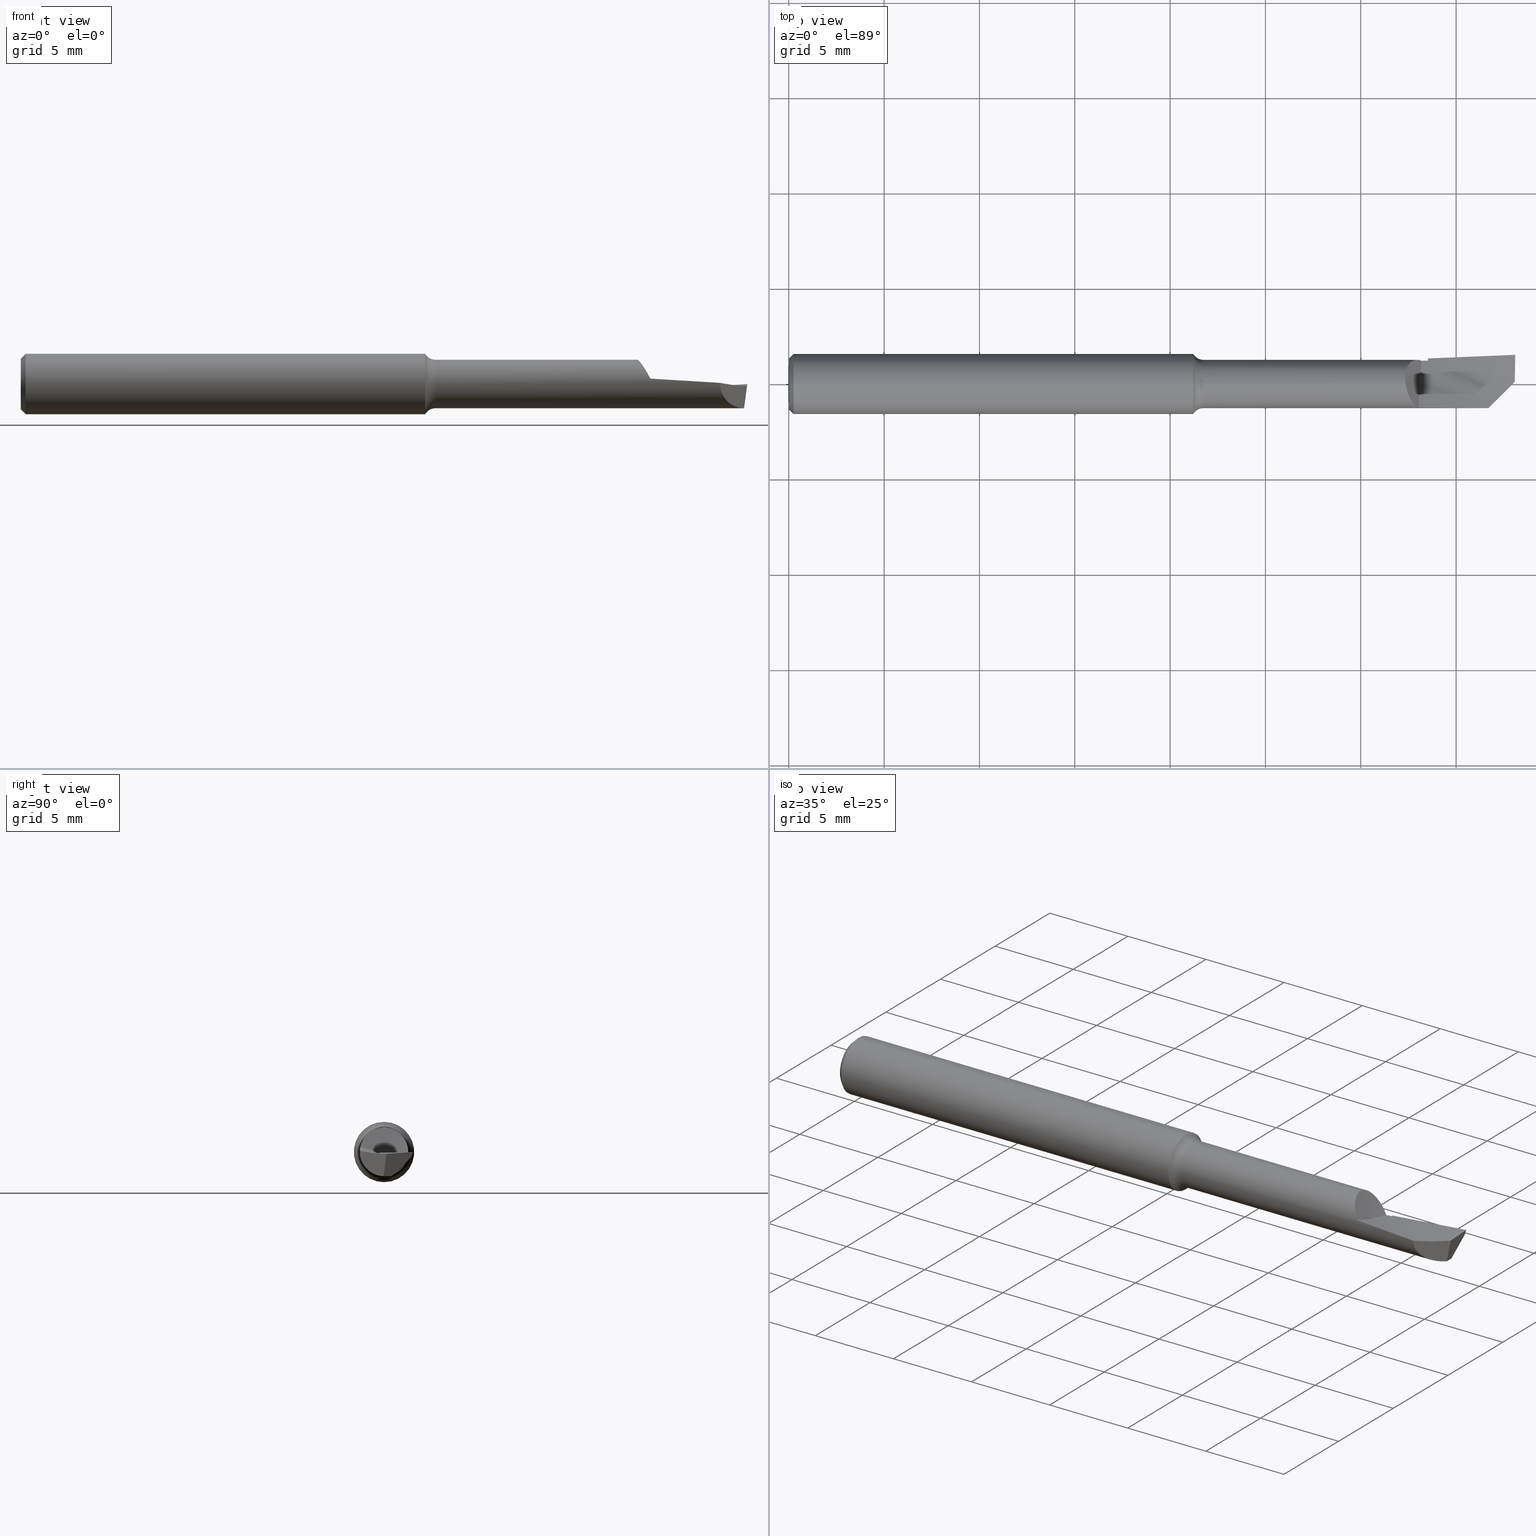
[diagram: canonical four-view strip — front | top / right | iso, engineering-drawing reading convention]
A machine part, canonical four-view strip (front | top / right | iso — engineering-drawing reading convention). The complete STEP part file that produces these views, byte-faithful:
ISO-10303-21;
HEADER;
FILE_DESCRIPTION (( 'STEP AP203' ),
    '1' );
FILE_NAME ('216342-HB120625.STEP',
    '2024-07-31T21:15:58',
    ( '' ),
    ( '' ),
    'SwSTEP 2.0',
    'SolidWorks 2024',
    '' );
FILE_SCHEMA (( 'CONFIG_CONTROL_DESIGN' ));
ENDSEC;

DATA;
#1 = DATE_TIME_ROLE ( 'classification_date' ) ;
#2 = CARTESIAN_POINT ( 'NONE',  ( 0.000000000000000000, 0.000000000000000000, 0.000000000000000000 ) ) ;
#3 = EDGE_CURVE ( 'NONE', #497, #549, #453, .T. ) ;
#4 = CARTESIAN_POINT ( 'NONE',  ( 1.304677247327703293, 0.01837899383502872991, -0.009468478033676281172 ) ) ;
#5 = B_SPLINE_CURVE_WITH_KNOTS ( 'NONE', 3,
 ( #606, #490, #171, #282, #118, #337, #548, #330, #496, #267 ),
 .UNSPECIFIED., .F., .F.,
 ( 4, 3, 3, 4 ),
 ( 0.000000000000000000, 0.001303478510763432258, 0.002606928754740228324, 0.004423834852725537503 ),
 .UNSPECIFIED. ) ;
#6 = PERSON_AND_ORGANIZATION ( #637, #413 ) ;
#7 = DIRECTION ( 'NONE',  ( -1.000000000000000000, -0.000000000000000000, -0.000000000000000000 ) ) ;
#8 = CIRCLE ( 'NONE', #309, 0.05000000000000000278 ) ;
#9 = CARTESIAN_POINT ( 'NONE',  ( 0.01000000000000000021, 0.000000000000000000, 0.000000000000000000 ) ) ;
#10 = DIRECTION ( 'NONE',  ( -1.000000000000000000, -0.000000000000000000, -0.000000000000000000 ) ) ;
#11 = CARTESIAN_POINT ( 'NONE',  ( 1.319999999999999840, 0.04998880411087137238, -0.01237900434958046948 ) ) ;
#12 = ADVANCED_FACE ( 'NONE', ( #84 ), #298, .F. ) ;
#13 = DIRECTION ( 'NONE',  ( 0.000000000000000000, 0.000000000000000000, 1.000000000000000000 ) ) ;
#14 = DIRECTION ( 'NONE',  ( 0.1218739150664907706, 0.000000000000000000, 0.9925455903012041503 ) ) ;
#15 = ORIENTED_EDGE ( 'NONE', *, *, #269, .T. ) ;
#16 = FACE_OUTER_BOUND ( 'NONE', #445, .T. ) ;
#17 = APPROVAL ( #595, 'UNSPECIFIED' ) ;
#18 = CARTESIAN_POINT ( 'NONE',  ( 0.8350000000000000755, 0.000000000000000000, 0.000000000000000000 ) ) ;
#19 = EDGE_LOOP ( 'NONE', ( #219, #341, #432, #82 ) ) ;
#20 = CARTESIAN_POINT ( 'NONE',  ( 1.500000000000000000, 0.03809952085550589312, -0.007979256663848445508 ) ) ;
#21 = ADVANCED_FACE ( 'NONE', ( #576 ), #639, .T. ) ;
#22 = CARTESIAN_POINT ( 'NONE',  ( 1.499681070570779040, 0.05922896876376144287, -0.002524806195163675250 ) ) ;
#23 = ORIENTED_EDGE ( 'NONE', *, *, #425, .T. ) ;
#24 = CARTESIAN_POINT ( 'NONE',  ( 1.500000000000000222, -0.1123499999999997417, 0.009142668008615833369 ) ) ;
#25 = FACE_OUTER_BOUND ( 'NONE', #19, .T. ) ;
#26 = EDGE_LOOP ( 'NONE', ( #466, #386, #660 ) ) ;
#27 = CARTESIAN_POINT ( 'NONE',  ( 1.444042603293461458, -0.04994443645257963527, 0.002356537170136629739 ) ) ;
#28 = AXIS2_PLACEMENT_3D ( 'NONE', #530, #526, #312 ) ;
#29 = CARTESIAN_POINT ( 'NONE',  ( 1.499073689650320063, 0.005086649904279552659, -0.003623339469795202467 ) ) ;
#30 = LOCAL_TIME ( 14, 15, 58.00000000000000000, #187 ) ;
#31 = EDGE_LOOP ( 'NONE', ( #172, #553 ) ) ;
#32 = CARTESIAN_POINT ( 'NONE',  ( 1.284317359456826457, 0.04468171013173798112, 0.02244703144825736449 ) ) ;
#33 = ORIENTED_EDGE ( 'NONE', *, *, #610, .T. ) ;
#34 = CARTESIAN_POINT ( 'NONE',  ( 1.272600000000000176, 0.01767793910073120478, 0.04677061544549996480 ) ) ;
#35 = ADVANCED_FACE ( 'NONE', ( #573 ), #590, .T. ) ;
#36 = VERTEX_POINT ( 'NONE', #89 ) ;
#37 = B_SPLINE_CURVE_WITH_KNOTS ( 'NONE', 3,
 ( #469, #254, #251, #104, #260, #377, #142, #684, #414, #201, #691, #589, #480, #423, #642, #586, #198 ),
 .UNSPECIFIED., .F., .F.,
 ( 4, 2, 2, 2, 2, 1, 2, 2, 4 ),
 ( 0.000000000000000000, 0.2299134979144048796, 0.4598269958288098147, 0.4885661830681104489, 0.5029357766877636804, 0.5173053703074169674, 0.5747837447860228988, 0.6897404937432349836, 0.9196539916576558227 ),
 .UNSPECIFIED. ) ;
#38 = ORIENTED_EDGE ( 'NONE', *, *, #456, .T. ) ;
#39 = EDGE_CURVE ( 'NONE', #63, #625, #685, .T. ) ;
#40 = ORIENTED_EDGE ( 'NONE', *, *, #295, .T. ) ;
#41 = CARTESIAN_POINT ( 'NONE',  ( 1.372134394488186082, -0.04973365691441448966, 0.006823797599040678542 ) ) ;
#42 = B_SPLINE_CURVE_WITH_KNOTS ( 'NONE', 3,
 ( #34, #396, #600, #613, #123, #343, #287, #399, #505, #32, #177, #617, #360, #237, #248, #143, #242, #355, #564, #85, #562, #621, #90, #185, #673 ),
 .UNSPECIFIED., .F., .F.,
 ( 4, 2, 2, 2, 1, 1, 2, 2, 2, 2, 1, 2, 2, 4 ),
 ( 0.000000000000000000, 0.2500000000000081046, 0.3750000000000106026, 0.4375000000000100475, 0.4687500000000117129, 0.4843750000000125455, 0.4921875000000108247, 0.5000000000000091038, 0.6250000000000045519, 0.6875000000000049960, 0.7187500000000051070, 0.7343750000000074385, 0.7500000000000098810, 1.000000000000000000 ),
 .UNSPECIFIED. ) ;
#43 = DIRECTION ( 'NONE',  ( -0.000000000000000000, 0.000000000000000000, 1.000000000000000000 ) ) ;
#44 = CARTESIAN_POINT ( 'NONE',  ( 1.440020333537398667, 0.05831592638305176796, -0.004774228934065402434 ) ) ;
#45 = CARTESIAN_POINT ( 'NONE',  ( 0.000000000000000000, 7.023349393110068342E-18, 0.05234999999999996600 ) ) ;
#46 = CIRCLE ( 'NONE', #491, 0.06235000000000000264 ) ;
#47 = DIRECTION ( 'NONE',  ( 0.000000000000000000, -8.881784197001252323E-16, -1.000000000000000000 ) ) ;
#48 = CARTESIAN_POINT ( 'NONE',  ( 1.379574988136203162, 0.05025777055091223272, -0.01830322063574537500 ) ) ;
#49 = CARTESIAN_POINT ( 'NONE',  ( 1.320000000000000062, -0.04051069901894399639, -0.07496423284839377754 ) ) ;
#50 = CARTESIAN_POINT ( 'NONE',  ( 1.493329537314193933, -0.0006575024318471743611, -0.04999567671861353951 ) ) ;
#51 = CARTESIAN_POINT ( 'NONE',  ( 1.439999788736140651, -0.02452506910399407034, -0.08108234230191842251 ) ) ;
#52 = VECTOR ( 'NONE', #418, 39.37007874015748143 ) ;
#53 = DIRECTION ( 'NONE',  ( 1.000000000000000000, -0.000000000000000000, -0.000000000000000000 ) ) ;
#54 = APPROVAL_PERSON_ORGANIZATION ( #626, #252, #137 ) ;
#55 = CARTESIAN_POINT ( 'NONE',  ( 1.493329537314193933, -0.0006575024318471743611, -0.04999567671861353951 ) ) ;
#56 = EDGE_CURVE ( 'NONE', #369, #222, #37, .T. ) ;
#57 = SECURITY_CLASSIFICATION_LEVEL ( 'unclassified' ) ;
#58 = CARTESIAN_POINT ( 'NONE',  ( 1.272599999999999065, 0.01388379330715446350, 0.04766300404071218549 ) ) ;
#59 = DIRECTION ( 'NONE',  ( 0.000000000000000000, -0.2334453638559059185, -0.9723699203976764460 ) ) ;
#60 = ORIENTED_EDGE ( 'NONE', *, *, #357, .T. ) ;
#61 = CARTESIAN_POINT ( 'NONE',  ( 1.273051394249579804, 0.001872754368536154630, 0.04996990837720743234 ) ) ;
#62 = LINE ( 'NONE', #121, #261 ) ;
#63 = VERTEX_POINT ( 'NONE', #420 ) ;
#64 = CARTESIAN_POINT ( 'NONE',  ( 0.9385185185185199730, 0.09194188689983287532, -0.06521349792500083509 ) ) ;
#65 = LINE ( 'NONE', #656, #181 ) ;
#66 = VERTEX_POINT ( 'NONE', #640 ) ;
#67 = CARTESIAN_POINT ( 'NONE',  ( 1.320000000000000062, 0.04673003679680187011, -0.02150304118259648706 ) ) ;
#68 = DIRECTION ( 'NONE',  ( -1.000000000000000000, -0.000000000000000000, -0.000000000000000000 ) ) ;
#69 = ORIENTED_EDGE ( 'NONE', *, *, #411, .T. ) ;
#70 =( BOUNDED_CURVE ( )  B_SPLINE_CURVE ( 3, ( #27, #455, #173, #161 ),
 .UNSPECIFIED., .F., .F. ) 
 B_SPLINE_CURVE_WITH_KNOTS ( ( 4, 4 ),
 ( 6.236037097670802609, 7.840831206315360902 ),
 .UNSPECIFIED. ) 
 CURVE ( )  GEOMETRIC_REPRESENTATION_ITEM ( )  RATIONAL_B_SPLINE_CURVE ( ( 1.000000000000000000, 0.7966567785890934505, 0.7966567785890934505, 1.000000000000000000 ) ) 
 REPRESENTATION_ITEM ( '' )  );
#71 = CARTESIAN_POINT ( 'NONE',  ( 1.320000000000000062, 0.000000000000000000, -0.04999999999999999584 ) ) ;
#72 = CARTESIAN_POINT ( 'NONE',  ( 1.380017022021224005, 0.05585438051472550736, -0.009012194645226781139 ) ) ;
#73 = ORIENTED_EDGE ( 'NONE', *, *, #584, .F. ) ;
#74 = CLOSED_SHELL ( 'NONE', ( #572, #336, #281, #482, #94, #652, #661, #217, #632, #78, #419, #35, #21, #370, #145, #12, #407, #247 ) ) ;
#75 = CARTESIAN_POINT ( 'NONE',  ( 1.380000027824546782, 0.05585640176376902716, -0.009007971073869752363 ) ) ;
#76 = LOCAL_TIME ( 14, 15, 58.00000000000000000, #415 ) ;
#77 = ORIENTED_EDGE ( 'NONE', *, *, #623, .F. ) ;
#78 = ADVANCED_FACE ( 'NONE', ( #477 ), #663, .T. ) ;
#79 = FACE_OUTER_BOUND ( 'NONE', #345, .T. ) ;
#80 = EDGE_LOOP ( 'NONE', ( #277, #648, #301, #213, #73 ) ) ;
#81 =( NAMED_UNIT ( * ) PLANE_ANGLE_UNIT ( ) SI_UNIT ( $, .RADIAN. ) );
#82 = ORIENTED_EDGE ( 'NONE', *, *, #551, .F. ) ;
#83 = EDGE_CURVE ( 'NONE', #619, #63, #8, .T. ) ;
#84 = FACE_OUTER_BOUND ( 'NONE', #226, .T. ) ;
#85 = CARTESIAN_POINT ( 'NONE',  ( 1.294497396816033596, 0.04965823932066414093, 0.005851346421088930543 ) ) ;
#86 = CARTESIAN_POINT ( 'NONE',  ( 1.500000000000000222, 0.06024999999999999800, 0.000000000000000000 ) ) ;
#87 = VERTEX_POINT ( 'NONE', #205 ) ;
#88 = CARTESIAN_POINT ( 'NONE',  ( 1.320000000000000062, 0.05298751832235817222, -0.01273037563012554933 ) ) ;
#89 = CARTESIAN_POINT ( 'NONE',  ( 1.320000000000000062, 0.04673003679680187011, -0.02150304118259648706 ) ) ;
#90 = CARTESIAN_POINT ( 'NONE',  ( 1.299225894277451054, 0.05030653370678083575, -0.001594238758345357422 ) ) ;
#91 = CARTESIAN_POINT ( 'NONE',  ( 1.480606963987902036, -0.01338007575813865077, -0.003907098253927653551 ) ) ;
#92 = CARTESIAN_POINT ( 'NONE',  ( 1.320000000000000062, 0.000000000000000000, 0.000000000000000000 ) ) ;
#93 = CIRCLE ( 'NONE', #381, 0.02500000000000000486 ) ;
#94 = ADVANCED_FACE ( 'NONE', ( #322 ), #148, .T. ) ;
#95 = VECTOR ( 'NONE', #279, 39.37007874015748854 ) ;
#96 = DIRECTION ( 'NONE',  ( -1.000000000000000000, -0.000000000000000000, -0.000000000000000000 ) ) ;
#97 = DIRECTION ( 'NONE',  ( -1.000000000000000000, -0.000000000000000000, -0.000000000000000000 ) ) ;
#98 = ORIENTED_EDGE ( 'NONE', *, *, #495, .F. ) ;
#99 = CALENDAR_DATE ( 2024, 31, 7 ) ;
#100 = CARTESIAN_POINT ( 'NONE',  ( 1.272599999999999065, 0.01010214357083988497, 0.04860530849071728610 ) ) ;
#101 = DIRECTION ( 'NONE',  ( 0.000000000000000000, 0.000000000000000000, -1.000000000000000000 ) ) ;
#102 = ORIENTED_EDGE ( 'NONE', *, *, #39, .F. ) ;
#103 = DIRECTION ( 'NONE',  ( -1.000000000000000000, -0.000000000000000000, -0.000000000000000000 ) ) ;
#104 = CARTESIAN_POINT ( 'NONE',  ( 1.287652084224879978, -0.03785546354915629574, 0.03313858260128670075 ) ) ;
#105 = VECTOR ( 'NONE', #542, 39.37007874015748854 ) ;
#106 = CARTESIAN_POINT ( 'NONE',  ( 1.304438552170990473, 0.01524796768859789514, -0.008475194891751235485 ) ) ;
#107 = PLANE ( 'NONE',  #531 ) ;
#108 = ORIENTED_EDGE ( 'NONE', *, *, #682, .F. ) ;
#109 = DIRECTION ( 'NONE',  ( -1.000000000000000000, -0.000000000000000000, -0.000000000000000000 ) ) ;
#110 = CARTESIAN_POINT ( 'NONE',  ( 1.499840519423242036, 0.05973987880259837291, -0.001262560311727772312 ) ) ;
#111 = VERTEX_POINT ( 'NONE', #45 ) ;
#112 = DIRECTION ( 'NONE',  ( 0.000000000000000000, 0.000000000000000000, -1.000000000000000000 ) ) ;
#113 = DIRECTION ( 'NONE',  ( -1.000000000000000000, -0.000000000000000000, -0.000000000000000000 ) ) ;
#114 = ORIENTED_EDGE ( 'NONE', *, *, #56, .T. ) ;
#115 = CARTESIAN_POINT ( 'NONE',  ( 0.000000000000000000, 0.000000000000000000, 0.000000000000000000 ) ) ;
#116 = APPLICATION_CONTEXT ( 'configuration controlled 3d designs of mechanical parts and assemblies' ) ;
#117 = APPROVAL_PERSON_ORGANIZATION ( #6, #17, #315 ) ;
#118 = CARTESIAN_POINT ( 'NONE',  ( 1.388088441632869374, 0.006991100374559138138, -0.05000000000000003053 ) ) ;
#119 = ORIENTED_EDGE ( 'NONE', *, *, #163, .F. ) ;
#120 = CARTESIAN_POINT ( 'NONE',  ( 1.320000000000000062, 0.0002276509060372900926, -0.04999973990684460773 ) ) ;
#121 = CARTESIAN_POINT ( 'NONE',  ( 0.000000000000000000, 0.000000000000000000, 0.05000000000000000971 ) ) ;
#122 = VERTEX_POINT ( 'NONE', #689 ) ;
#123 = CARTESIAN_POINT ( 'NONE',  ( 1.278705978377491226, 0.03813056717829739484, 0.03251501850973271407 ) ) ;
#124 = EDGE_CURVE ( 'NONE', #549, #594, #243, .T. ) ;
#125 = FACE_OUTER_BOUND ( 'NONE', #126, .T. ) ;
#126 = EDGE_LOOP ( 'NONE', ( #395, #515, #608, #501 ) ) ;
#127 = CARTESIAN_POINT ( 'NONE',  ( 0.000000000000000000, 0.000000000000000000, 0.000000000000000000 ) ) ;
#128 = CARTESIAN_POINT ( 'NONE',  ( 0.8565633369402790853, 9.184850993605151827E-18, -0.07500000000000002498 ) ) ;
#129 = CC_DESIGN_APPROVAL ( #17, ( #404 ) ) ;
#130 = VERTEX_POINT ( 'NONE', #208 ) ;
#131 = DESIGN_CONTEXT ( 'detailed design', #116, 'design' ) ;
#132 = CALENDAR_DATE ( 2024, 31, 7 ) ;
#133 = EDGE_LOOP ( 'NONE', ( #33, #102 ) ) ;
#134 = EDGE_CURVE ( 'NONE', #440, #36, #601, .T. ) ;
#135 = DATE_AND_TIME ( #410, #30 ) ;
#136 = CARTESIAN_POINT ( 'NONE',  ( 1.493471848072225105, 0.01571052489207363026, -0.04999999999999999584 ) ) ;
#137 = APPROVAL_ROLE ( '' ) ;
#138 = ORIENTED_EDGE ( 'NONE', *, *, #83, .T. ) ;
#139 = CC_DESIGN_APPROVAL ( #435, ( #568 ) ) ;
#140 = PERSON_AND_ORGANIZATION_ROLE ( 'creator' ) ;
#141 = CARTESIAN_POINT ( 'NONE',  ( 0.000000000000000000, 0.000000000000000000, 0.000000000000000000 ) ) ;
#142 = CARTESIAN_POINT ( 'NONE',  ( 1.283247182530694586, -0.03046780381315742151, 0.03964770486486433182 ) ) ;
#143 = CARTESIAN_POINT ( 'NONE',  ( 1.290553912426656069, 0.04852325606477719128, 0.01215098941398904710 ) ) ;
#144 = LINE ( 'NONE', #253, #52 ) ;
#145 = ADVANCED_FACE ( 'NONE', ( #380 ), #166, .T. ) ;
#146 = CARTESIAN_POINT ( 'NONE',  ( 1.498831042888313370, 0.05649510550248681984, -0.009253160012283014740 ) ) ;
#147 = ORIENTED_EDGE ( 'NONE', *, *, #379, .T. ) ;
#148 = PLANE ( 'NONE',  #422 ) ;
#149 = DIRECTION ( 'NONE',  ( 0.000000000000000000, 0.000000000000000000, 1.000000000000000000 ) ) ;
#150 = CARTESIAN_POINT ( 'NONE',  ( 1.380000042088465939, 0.05028294012662892082, -0.01828039064598065491 ) ) ;
#151 = EDGE_CURVE ( 'NONE', #464, #130, #46, .T. ) ;
#152 = CARTESIAN_POINT ( 'NONE',  ( 1.273234840405434332, 0.0005353297154211454720, 0.04999785160134054274 ) ) ;
#153 = CARTESIAN_POINT ( 'NONE',  ( 1.380000243912397950, -0.03275893449063330132, -0.07859347070020093751 ) ) ;
#154 =( BOUNDED_CURVE ( )  B_SPLINE_CURVE ( 2, ( #517, #193, #635 ),
 .UNSPECIFIED., .F., .F. ) 
 B_SPLINE_CURVE_WITH_KNOTS ( ( 3, 3 ),
 ( 0.6562066243744422156, 0.6799135259352183658 ),
 .UNSPECIFIED. ) 
 CURVE ( )  GEOMETRIC_REPRESENTATION_ITEM ( )  RATIONAL_B_SPLINE_CURVE ( ( 0.9832334983342112533, 0.9829660379099344203, 0.9827661798926232706 ) ) 
 REPRESENTATION_ITEM ( '' )  );
#155 = DIRECTION ( 'NONE',  ( 0.1220122463319277123, 0.1220122463319273237, 0.9850005195379716305 ) ) ;
#156 = B_SPLINE_CURVE_WITH_KNOTS ( 'NONE', 3,
 ( #321, #58, #100, #650 ),
 .UNSPECIFIED., .F., .F.,
 ( 4, 4 ),
 ( 0.000000000000000000, 1.000000000000000000 ),
 .UNSPECIFIED. ) ;
#157 = CARTESIAN_POINT ( 'NONE',  ( 1.493332831684060169, -0.0002191753736062268488, -0.05000000000000000971 ) ) ;
#158 = ORIENTED_EDGE ( 'NONE', *, *, #184, .F. ) ;
#159 = DIRECTION ( 'NONE',  ( 0.000000000000000000, -0.8526401643540895137, -0.5224985647159531288 ) ) ;
#160 = ORIENTED_EDGE ( 'NONE', *, *, #540, .T. ) ;
#161 = CARTESIAN_POINT ( 'NONE',  ( 1.493329537314193933, -0.0006575024318471743611, -0.04999567671861353951 ) ) ;
#162 = CARTESIAN_POINT ( 'NONE',  ( 0.000000000000000000, 0.000000000000000000, 0.000000000000000000 ) ) ;
#163 = EDGE_CURVE ( 'NONE', #545, #176, #499, .T. ) ;
#164 = ORIENTED_EDGE ( 'NONE', *, *, #540, .F. ) ;
#165 = CARTESIAN_POINT ( 'NONE',  ( 1.219259259259259931, 0.03307277209559596892, -0.02052885219001459802 ) ) ;
#166 = PLANE ( 'NONE',  #347 ) ;
#167 = ORIENTED_EDGE ( 'NONE', *, *, #317, .F. ) ;
#168 = CARTESIAN_POINT ( 'NONE',  ( 1.078888888888890119, -0.03755533113105855025, 0.01232679313948632088 ) ) ;
#169 = AXIS2_PLACEMENT_3D ( 'NONE', #571, #683, #188 ) ;
#170 = AXIS2_PLACEMENT_3D ( 'NONE', #524, #534, #13 ) ;
#171 = CARTESIAN_POINT ( 'NONE',  ( 1.354028568218777373, 0.003770513295725831052, -0.05000000000000003053 ) ) ;
#172 = ORIENTED_EDGE ( 'NONE', *, *, #623, .T. ) ;
#173 = CARTESIAN_POINT ( 'NONE',  ( 1.463247076013919346, -0.03073996373212161889, -0.04960005668186116823 ) ) ;
#174 = EDGE_CURVE ( 'NONE', #625, #497, #5, .T. ) ;
#175 = CARTESIAN_POINT ( 'NONE',  ( 0.000000000000000000, 0.000000000000000000, -0.05234999999999996600 ) ) ;
#176 = VERTEX_POINT ( 'NONE', #593 ) ;
#177 = CARTESIAN_POINT ( 'NONE',  ( 1.284658545911741223, 0.04496562735253333692, 0.02186638676765499320 ) ) ;
#178 = DIRECTION ( 'NONE',  ( 0.000000000000000000, 0.000000000000000000, -1.000000000000000000 ) ) ;
#179 = ORIENTED_EDGE ( 'NONE', *, *, #151, .T. ) ;
#180 = DATE_TIME_ROLE ( 'creation_date' ) ;
#181 = VECTOR ( 'NONE', #68, 39.37007874015748143 ) ;
#182 = ORIENTED_EDGE ( 'NONE', *, *, #463, .T. ) ;
#183 = ORIENTED_EDGE ( 'NONE', *, *, #39, .T. ) ;
#184 = EDGE_CURVE ( 'NONE', #222, #122, #62, .T. ) ;
#185 = CARTESIAN_POINT ( 'NONE',  ( 1.302908631925958849, 0.04978089754540802880, -0.007426383352256541587 ) ) ;
#186 = ORIENTED_EDGE ( 'NONE', *, *, #400, .F. ) ;
#187 = COORDINATED_UNIVERSAL_TIME_OFFSET ( 8, 0, .BEHIND. ) ;
#188 = DIRECTION ( 'NONE',  ( -0.7071067811865486830, -0.7071067811865464625, 0.000000000000000000 ) ) ;
#189 = VECTOR ( 'NONE', #103, 39.37007874015748143 ) ;
#190 = CARTESIAN_POINT ( 'NONE',  ( 1.272600000000001064, -0.03484481968438611632, 0.06271852550750152411 ) ) ;
#191 = LOCAL_TIME ( 14, 15, 58.00000000000000000, #459 ) ;
#192 = APPROVAL_STATUS ( 'not_yet_approved' ) ;
#193 = CARTESIAN_POINT ( 'NONE',  ( 1.313307016291270557, 0.04838941676514681156, -0.01259508402390933923 ) ) ;
#194 = EDGE_CURVE ( 'NONE', #111, #333, #500, .T. ) ;
#195 = CARTESIAN_POINT ( 'NONE',  ( 1.439999865074238938, 0.05350731005932336110, -0.01441471241017548872 ) ) ;
#196 = CARTESIAN_POINT ( 'NONE',  ( 1.499073689650320063, 0.005086649904279552659, -0.003623339469795202467 ) ) ;
#197 =( BOUNDED_CURVE ( )  B_SPLINE_CURVE ( 3, ( #484, #11, #431, #647 ),
 .UNSPECIFIED., .F., .F. ) 
 B_SPLINE_CURVE_WITH_KNOTS ( ( 4, 4 ),
 ( 0.002864310017421631098, 0.002979249508196540192 ),
 .UNSPECIFIED. ) 
 CURVE ( )  GEOMETRIC_REPRESENTATION_ITEM ( )  RATIONAL_B_SPLINE_CURVE ( ( 0.9827661798926234926, 0.9829149142859049393, 0.9830703882117020065, 0.9832326016700145832 ) ) 
 REPRESENTATION_ITEM ( '' )  );
#198 = CARTESIAN_POINT ( 'NONE',  ( 1.273310971566198546, -1.974737388771416636E-06, 0.05000498167796915694 ) ) ;
#199 = PRODUCT ( '216342-HB120625', '216342-HB120625', '', ( #680 ) ) ;
#200 = CARTESIAN_POINT ( 'NONE',  ( 0.000000000000000000, 0.000000000000000000, 0.000000000000000000 ) ) ;
#201 = CARTESIAN_POINT ( 'NONE',  ( 1.282536405550774194, -0.02911040957615007238, 0.04065397835226913087 ) ) ;
#202 = EDGE_CURVE ( 'NONE', #665, #87, #65, .T. ) ;
#203 = AXIS2_PLACEMENT_3D ( 'NONE', #2, #96, #585 ) ;
#204 = CARTESIAN_POINT ( 'NONE',  ( 1.320000000000000062, 0.000000000000000000, -0.04999999999999999584 ) ) ;
#205 = CARTESIAN_POINT ( 'NONE',  ( 0.8565633369402790853, 6.123233995736767885E-18, -0.05000000000000000971 ) ) ;
#206 = CARTESIAN_POINT ( 'NONE',  ( 1.273310971566198546, -1.974737388771416636E-06, 0.05000498167796915694 ) ) ;
#207 = DIMENSIONAL_EXPONENTS ( 1.000000000000000000, 0.000000000000000000, 0.000000000000000000, 0.000000000000000000, 0.000000000000000000, 0.000000000000000000, 0.000000000000000000 ) ;
#208 = CARTESIAN_POINT ( 'NONE',  ( 0.8350000000000000755, 0.000000000000000000, 0.06235000000000000264 ) ) ;
#209 = CALENDAR_DATE ( 2024, 31, 7 ) ;
#210 = CARTESIAN_POINT ( 'NONE',  ( 1.498724836220111323, 0.05615222537926604224, -0.01009374182364030509 ) ) ;
#211 = B_SPLINE_SURFACE_WITH_KNOTS ( 'NONE', 1, 3, ( 
 ( #86, #344, #75, #401 ),
 ( #471, #290, #506, #688 ) ),
 .UNSPECIFIED., .F., .F., .F.,
 ( 2, 2 ),
 ( 4, 4 ),
 ( 0.000000000000000000, 1.000000000000000000 ),
 ( 0.000000000000000000, 1.000000000000000000 ),
 .UNSPECIFIED. ) ;
#212 = CARTESIAN_POINT ( 'NONE',  ( 1.320000000000000062, 0.04673003679680187011, -0.02150304118259648706 ) ) ;
#213 = ORIENTED_EDGE ( 'NONE', *, *, #257, .F. ) ;
#214 = VECTOR ( 'NONE', #348, 39.37007874015748143 ) ;
#215 = CARTESIAN_POINT ( 'NONE',  ( 1.498724836220111323, 0.05615222537926604224, -0.01009374182364030509 ) ) ;
#216 = LOCAL_TIME ( 14, 15, 58.00000000000000000, #320 ) ;
#217 = ADVANCED_FACE ( 'NONE', ( #25 ), #394, .T. ) ;
#218 = CARTESIAN_POINT ( 'NONE',  ( 0.01000000000000000021, 7.635672792683746671E-18, 0.06235000000000000264 ) ) ;
#219 = ORIENTED_EDGE ( 'NONE', *, *, #463, .F. ) ;
#220 = CARTESIAN_POINT ( 'NONE',  ( 1.500000000000000000, -0.03809952085550570577, -0.007979256663848447242 ) ) ;
#221 = CARTESIAN_POINT ( 'NONE',  ( 1.499362236889004718, 0.05820557389238486395, -0.005048664631532469131 ) ) ;
#222 = VERTEX_POINT ( 'NONE', #388 ) ;
#223 = CARTESIAN_POINT ( 'NONE',  ( 1.078888888888890119, 0.02945298157152033761, -0.02636047423729021358 ) ) ;
#224 = B_SPLINE_CURVE_WITH_KNOTS ( 'NONE', 3,
 ( #591, #106, #434, #421 ),
 .UNSPECIFIED., .F., .F.,
 ( 4, 4 ),
 ( 0.000000000000000000, 1.000000000000000000 ),
 .UNSPECIFIED. ) ;
#225 = CARTESIAN_POINT ( 'NONE',  ( 1.493334744398568503, 0.000000000000000000, -0.04999999999999999584 ) ) ;
#226 = EDGE_LOOP ( 'NONE', ( #603, #241, #374, #556 ) ) ;
#227 = EDGE_CURVE ( 'NONE', #619, #440, #197, .T. ) ;
#228 = FACE_OUTER_BOUND ( 'NONE', #31, .T. ) ;
#229 = AXIS2_PLACEMENT_3D ( 'NONE', #596, #109, #329 ) ;
#230 = CARTESIAN_POINT ( 'NONE',  ( 1.462263290948581540, -0.03172374879745755438, -0.001913391219986970660 ) ) ;
#231 = ORIENTED_EDGE ( 'NONE', *, *, #400, .T. ) ;
#232 = PLANE ( 'NONE',  #311 ) ;
#233 = CARTESIAN_POINT ( 'NONE',  ( 1.444042603293461458, -0.04994443645257963527, 0.002356537170136629739 ) ) ;
#234 = CARTESIAN_POINT ( 'NONE',  ( 1.498724836220111323, 0.05615222537926604224, -0.01009374182364030509 ) ) ;
#235 = CARTESIAN_POINT ( 'NONE',  ( 1.078888888888890119, 0.1034407860903860665, -0.04900166260731412399 ) ) ;
#236 = ORIENTED_EDGE ( 'NONE', *, *, #350, .F. ) ;
#237 = CARTESIAN_POINT ( 'NONE',  ( 1.286419368290057541, 0.04635677041615348520, 0.01889200084040072378 ) ) ;
#238 = VECTOR ( 'NONE', #53, 39.37007874015748143 ) ;
#239 = EDGE_CURVE ( 'NONE', #497, #176, #535, .T. ) ;
#240 = LOCAL_TIME ( 14, 15, 58.00000000000000000, #371 ) ;
#241 = ORIENTED_EDGE ( 'NONE', *, *, #239, .T. ) ;
#242 = CARTESIAN_POINT ( 'NONE',  ( 1.291480237396792630, 0.04887668778972361489, 0.01065908677223262845 ) ) ;
#243 = B_SPLINE_CURVE_WITH_KNOTS ( 'NONE', 3,
 ( #472, #146, #368, #365, #581, #221, #443, #22, #110, #659 ),
 .UNSPECIFIED., .F., .F.,
 ( 4, 3, 3, 4 ),
 ( 5.339076512604072756E-19, 6.964798454373739552E-05, 0.0001741201260021960290, 0.0002785924277987969619 ),
 .UNSPECIFIED. ) ;
#244 = ORIENTED_EDGE ( 'NONE', *, *, #565, .T. ) ;
#245 = CARTESIAN_POINT ( 'NONE',  ( 1.499254765950744694, 0.02348509594916605922, -0.003456260539687320502 ) ) ;
#246 = CARTESIAN_POINT ( 'NONE',  ( 1.299746956142138421, -0.05351572875917556121, 0.01296812390564009744 ) ) ;
#247 = ADVANCED_FACE ( 'NONE', ( #436 ), #107, .F. ) ;
#248 = CARTESIAN_POINT ( 'NONE',  ( 1.287940631087608034, 0.04732918689445155674, 0.01638779299897684741 ) ) ;
#249 = CARTESIAN_POINT ( 'NONE',  ( 0.000000000000000000, 0.000000000000000000, 0.06235000000000000264 ) ) ;
#250 = VECTOR ( 'NONE', #447, 39.37007874015748854 ) ;
#251 = CARTESIAN_POINT ( 'NONE',  ( 1.293119828095759649, -0.04423520646848196070, 0.02396765082427926991 ) ) ;
#252 = APPROVAL ( #302, 'UNSPECIFIED' ) ;
#253 = CARTESIAN_POINT ( 'NONE',  ( 0.01000000000000000021, 0.000000000000000000, -0.06235000000000000264 ) ) ;
#254 = CARTESIAN_POINT ( 'NONE',  ( 1.296350428254645637, -0.04713417480804065612, 0.01815536555169242755 ) ) ;
#255 = PERSON_AND_ORGANIZATION_ROLE ( 'classification_officer' ) ;
#256 = CARTESIAN_POINT ( 'NONE',  ( 1.491439213633945826, -0.002547826112095075840, -0.06525619247105474141 ) ) ;
#257 = EDGE_CURVE ( 'NONE', #36, #63, #653, .T. ) ;
#258 = CARTESIAN_POINT ( 'NONE',  ( 1.302165319221441742, -0.01859677316409098780, -0.0003321669591937771444 ) ) ;
#259 = CARTESIAN_POINT ( 'NONE',  ( 0.8565633369402790853, 0.000000000000000000, 0.000000000000000000 ) ) ;
#260 = CARTESIAN_POINT ( 'NONE',  ( 1.285414940512887405, -0.03437899939979030539, 0.03652654147791739581 ) ) ;
#261 = VECTOR ( 'NONE', #271, 39.37007874015748143 ) ;
#262 = CIRCLE ( 'NONE', #544, 0.06235000000000000264 ) ;
#263 = DIRECTION ( 'NONE',  ( -1.000000000000000000, -0.000000000000000000, -0.000000000000000000 ) ) ;
#264 = CARTESIAN_POINT ( 'NONE',  ( 1.493321544537999701, -0.001512554204472000034, -0.04999999999999999584 ) ) ;
#265 = PERSON_AND_ORGANIZATION_ROLE ( 'design_supplier' ) ;
#266 = CARTESIAN_POINT ( 'NONE',  ( 1.272678223989181845, 0.005301204891497752689, 0.04972910947857875352 ) ) ;
#267 = CARTESIAN_POINT ( 'NONE',  ( 1.493471848072225105, 0.01571052489207363026, -0.04999999999999999584 ) ) ;
#268 = ORIENTED_EDGE ( 'NONE', *, *, #3, .T. ) ;
#269 = EDGE_CURVE ( 'NONE', #464, #87, #93, .T. ) ;
#270 = DIRECTION ( 'NONE',  ( 0.000000000000000000, 0.000000000000000000, 1.000000000000000000 ) ) ;
#271 = DIRECTION ( 'NONE',  ( -1.000000000000000000, -0.000000000000000000, -0.000000000000000000 ) ) ;
#272 = EDGE_LOOP ( 'NONE', ( #60, #15, #160, #352 ) ) ;
#273 = AXIS2_PLACEMENT_3D ( 'NONE', #575, #552, #178 ) ;
#274 = DIRECTION ( 'NONE',  ( -1.000000000000000000, -0.000000000000000000, -0.000000000000000000 ) ) ;
#275 = CC_DESIGN_PERSON_AND_ORGANIZATION_ASSIGNMENT ( #529, #255, ( #404 ) ) ;
#276 = DIRECTION ( 'NONE',  ( 1.000000000000000000, 0.000000000000000000, 0.000000000000000000 ) ) ;
#277 = ORIENTED_EDGE ( 'NONE', *, *, #3, .F. ) ;
#278 = B_SPLINE_CURVE_WITH_KNOTS ( 'NONE', 3,
 ( #206, #366, #152, #376, #61, #316, #266, #588 ),
 .UNSPECIFIED., .F., .F.,
 ( 4, 2, 1, 1, 4 ),
 ( 0.9196539916576558227, 0.9296972427004485118, 0.9397404937432412009, 0.9598269958288278003, 1.000000000000000000 ),
 .UNSPECIFIED. ) ;
#279 = DIRECTION ( 'NONE',  ( 0.000000000000000000, -0.8526401643540895137, -0.5224985647159531288 ) ) ;
#280 =( BOUNDED_CURVE ( )  B_SPLINE_CURVE ( 2, ( #233, #41, #457 ),
 .UNSPECIFIED., .F., .F. ) 
 B_SPLINE_CURVE_WITH_KNOTS ( ( 3, 3 ),
 ( 0.1003933037384417970, 0.3554884400978503001 ),
 .UNSPECIFIED. ) 
 CURVE ( )  GEOMETRIC_REPRESENTATION_ITEM ( )  RATIONAL_B_SPLINE_CURVE ( ( 0.9848675701160670704, 0.9802770089604164738, 0.9835138369071867448 ) ) 
 REPRESENTATION_ITEM ( '' )  );
#281 = ADVANCED_FACE ( 'NONE', ( #615 ), #308, .T. ) ;
#282 = CARTESIAN_POINT ( 'NONE',  ( 1.371058622342655076, 0.005380817937683201463, -0.05000000000000003053 ) ) ;
#283 = EDGE_LOOP ( 'NONE', ( #391, #182, #328, #437 ) ) ;
#284 = CARTESIAN_POINT ( 'NONE',  ( 0.9385185185185199730, -0.03431489355488628878, 0.01837743471335178888 ) ) ;
#285 = CARTESIAN_POINT ( 'NONE',  ( 0.8350000000000000755, 0.000000000000000000, 0.000000000000000000 ) ) ;
#286 = VERTEX_POINT ( 'NONE', #690 ) ;
#287 = CARTESIAN_POINT ( 'NONE',  ( 1.281657918288051201, 0.04205972624716268482, 0.02709001874779200236 ) ) ;
#288 = B_SPLINE_CURVE_WITH_KNOTS ( 'NONE', 3,
 ( #29, #91, #230, #452 ),
 .UNSPECIFIED., .F., .F.,
 ( 4, 4 ),
 ( 3.314603057009250244E-05, 0.002015745591153740319 ),
 .UNSPECIFIED. ) ;
#289 = TOROIDAL_SURFACE ( 'NONE', #229, 0.07500000000000002498, 0.02500000000000000486 ) ;
#290 = CARTESIAN_POINT ( 'NONE',  ( 1.439999865074237828, 0.05350731005932331946, -0.01441471241017557199 ) ) ;
#291 = LINE ( 'NONE', #249, #214 ) ;
#292 = CARTESIAN_POINT ( 'NONE',  ( 1.078888888888890119, -0.09415707769080093603, 0.06508151723804914135 ) ) ;
#293 = ORIENTED_EDGE ( 'NONE', *, *, #425, .F. ) ;
#294 = DIRECTION ( 'NONE',  ( 1.000000000000000000, 0.000000000000000000, 0.000000000000000000 ) ) ;
#295 = EDGE_CURVE ( 'NONE', #594, #440, #602, .T. ) ;
#296 = ORIENTED_EDGE ( 'NONE', *, *, #202, .T. ) ;
#297 =( LENGTH_UNIT ( ) NAMED_UNIT ( * ) SI_UNIT ( $, .METRE. ) );
#298 = PLANE ( 'NONE',  #651 ) ;
#299 = CARTESIAN_POINT ( 'NONE',  ( 1.499561649755534853, 0.04187303682507321351, -0.002263854102581403047 ) ) ;
#300 = EDGE_CURVE ( 'NONE', #130, #333, #291, .T. ) ;
#301 = ORIENTED_EDGE ( 'NONE', *, *, #610, .F. ) ;
#302 = APPROVAL_STATUS ( 'not_yet_approved' ) ;
#303 = ADVANCED_BREP_SHAPE_REPRESENTATION ( '216342-HB120625', ( #667, #358 ), #630 ) ;
#304 = FACE_OUTER_BOUND ( 'NONE', #26, .T. ) ;
#305 = CARTESIAN_POINT ( 'NONE',  ( 1.320000000000000062, 0.000000000000000000, -0.04999999999999999584 ) ) ;
#306 = CC_DESIGN_PERSON_AND_ORGANIZATION_ASSIGNMENT ( #351, #375, ( #568 ) ) ;
#307 = DATE_AND_TIME ( #634, #76 ) ;
#308 = CYLINDRICAL_SURFACE ( 'NONE', #479, 0.06235000000000000264 ) ;
#309 = AXIS2_PLACEMENT_3D ( 'NONE', #633, #97, #518 ) ;
#310 = DIRECTION ( 'NONE',  ( -1.000000000000000000, -0.000000000000000000, -0.000000000000000000 ) ) ;
#311 = AXIS2_PLACEMENT_3D ( 'NONE', #127, #339, #112 ) ;
#312 = DIRECTION ( 'NONE',  ( 0.000000000000000000, 0.000000000000000000, -1.000000000000000000 ) ) ;
#313 = DIRECTION ( 'NONE',  ( 1.000000000000000000, 0.000000000000000000, 0.000000000000000000 ) ) ;
#314 = VERTEX_POINT ( 'NONE', #175 ) ;
#315 = APPROVAL_ROLE ( '' ) ;
#316 = CARTESIAN_POINT ( 'NONE',  ( 1.272825370079349483, 0.003731400626201005714, 0.04988030266195780243 ) ) ;
#317 = EDGE_CURVE ( 'NONE', #314, #587, #144, .T. ) ;
#318 = CARTESIAN_POINT ( 'NONE',  ( 1.320000000000000062, 0.05000000000000000278, 0.000000000000000000 ) ) ;
#319 = VERTEX_POINT ( 'NONE', #196 ) ;
#320 = COORDINATED_UNIVERSAL_TIME_OFFSET ( 8, 0, .BEHIND. ) ;
#321 = CARTESIAN_POINT ( 'NONE',  ( 1.272600000000000176, 0.01767793910073120478, 0.04677061544549996480 ) ) ;
#322 = FACE_OUTER_BOUND ( 'NONE', #389, .T. ) ;
#323 = VECTOR ( 'NONE', #155, 39.37007874015748143 ) ;
#324 = B_SPLINE_CURVE_WITH_KNOTS ( 'NONE', 3,
 ( #416, #560, #638, #514 ),
 .UNSPECIFIED., .F., .F.,
 ( 4, 4 ),
 ( 0.000000000000000000, 1.000000000000000000 ),
 .UNSPECIFIED. ) ;
#325 = CARTESIAN_POINT ( 'NONE',  ( 0.01000000000000000021, 0.000000000000000000, 0.000000000000000000 ) ) ;
#326 = DIRECTION ( 'NONE',  ( -0.9925083585251990304, 0.008661489226065374400, 0.1218693434051474900 ) ) ;
#327 = EDGE_CURVE ( 'NONE', #625, #665, #324, .T. ) ;
#328 = ORIENTED_EDGE ( 'NONE', *, *, #598, .F. ) ;
#329 = DIRECTION ( 'NONE',  ( 0.000000000000000000, 0.000000000000000000, 1.000000000000000000 ) ) ;
#330 = CARTESIAN_POINT ( 'NONE',  ( 1.445929105187844455, 0.01198547012496488547, -0.05000000000000000278 ) ) ;
#331 = ORIENTED_EDGE ( 'NONE', *, *, #317, .T. ) ;
#332 = CARTESIAN_POINT ( 'NONE',  ( 0.9385185185185199730, -0.08018829946900121741, 0.07922087797156433797 ) ) ;
#333 = VERTEX_POINT ( 'NONE', #473 ) ;
#334 = CIRCLE ( 'NONE', #28, 0.02500000000000000486 ) ;
#335 = DIRECTION ( 'NONE',  ( -1.000000000000000000, -0.000000000000000000, -0.000000000000000000 ) ) ;
#336 = ADVANCED_FACE ( 'NONE', ( #555 ), #580, .T. ) ;
#337 = CARTESIAN_POINT ( 'NONE',  ( 1.405127195350175606, 0.008508104757740990454, -0.05000000000000000278 ) ) ;
#338 = ORIENTED_EDGE ( 'NONE', *, *, #56, .F. ) ;
#339 = DIRECTION ( 'NONE',  ( 1.000000000000000000, 0.000000000000000000, 0.000000000000000000 ) ) ;
#340 = DIRECTION ( 'NONE',  ( -0.000000000000000000, 1.000000000000000000, 1.224646799147353207E-16 ) ) ;
#341 = ORIENTED_EDGE ( 'NONE', *, *, #357, .F. ) ;
#342 = APPLICATION_CONTEXT ( 'configuration controlled 3d designs of mechanical parts and assemblies' ) ;
#343 = CARTESIAN_POINT ( 'NONE',  ( 1.280881745406233341, 0.04112134373046005126, 0.02849257333601309602 ) ) ;
#344 = CARTESIAN_POINT ( 'NONE',  ( 1.439999872275816717, 0.05833297247800845603, -0.004732034011795190238 ) ) ;
#345 = EDGE_LOOP ( 'NONE', ( #186, #40, #627, #616, #244, #503, #236 ) ) ;
#346 = DIRECTION ( 'NONE',  ( 0.000000000000000000, 0.000000000000000000, 1.000000000000000000 ) ) ;
#347 = AXIS2_PLACEMENT_3D ( 'NONE', #385, #664, #59 ) ;
#348 = DIRECTION ( 'NONE',  ( -1.000000000000000000, -0.000000000000000000, -0.000000000000000000 ) ) ;
#349 = ORIENTED_EDGE ( 'NONE', *, *, #551, .T. ) ;
#350 = EDGE_CURVE ( 'NONE', #319, #398, #288, .T. ) ;
#351 = PERSON_AND_ORGANIZATION ( #637, #413 ) ;
#352 = ORIENTED_EDGE ( 'NONE', *, *, #519, .F. ) ;
#353 = APPROVAL_ROLE ( '' ) ;
#354 = CARTESIAN_POINT ( 'NONE',  ( 1.495198500458943869, 0.02913189798354566887, -0.03689196312197288996 ) ) ;
#355 = CARTESIAN_POINT ( 'NONE',  ( 1.292952571637677961, 0.04931186813868831259, 0.008305199919366250752 ) ) ;
#356 = AXIS2_PLACEMENT_3D ( 'NONE', #92, #310, #47 ) ;
#357 = EDGE_CURVE ( 'NONE', #130, #464, #628, .T. ) ;
#358 = AXIS2_PLACEMENT_3D ( 'NONE', #513, #470, #294 ) ;
#359 = CARTESIAN_POINT ( 'NONE',  ( 1.496949392553824643, 0.04261354698978679634, -0.02359080110587262469 ) ) ;
#360 = CARTESIAN_POINT ( 'NONE',  ( 1.285037759127088508, 0.04527226005398709424, 0.02122369788388786538 ) ) ;
#361 = DIRECTION ( 'NONE',  ( 0.000000000000000000, 0.000000000000000000, 1.000000000000000000 ) ) ;
#362 = CARTESIAN_POINT ( 'NONE',  ( 1.272600000000000176, 0.06225604426720232620, 0.03877222077898967445 ) ) ;
#363 = LENGTH_MEASURE_WITH_UNIT ( LENGTH_MEASURE( 0.02539999999999999897 ), #297 );
#364 = DIRECTION ( 'NONE',  ( -1.000000000000000000, -0.000000000000000000, -0.000000000000000000 ) ) ;
#365 = CARTESIAN_POINT ( 'NONE',  ( 1.499043499100346954, 0.05717981691089919771, -0.007571574231157124878 ) ) ;
#366 = CARTESIAN_POINT ( 'NONE',  ( 1.273280173712074914, 0.0002228450762295597180, 0.05000000711950181725 ) ) ;
#367 = VECTOR ( 'NONE', #439, 39.37007874015748143 ) ;
#368 = CARTESIAN_POINT ( 'NONE',  ( 1.498937263991062974, 0.05683763611035223817, -0.008412437369930409262 ) ) ;
#369 = VERTEX_POINT ( 'NONE', #397 ) ;
#370 = ADVANCED_FACE ( 'NONE', ( #125 ), #211, .T. ) ;
#371 = COORDINATED_UNIVERSAL_TIME_OFFSET ( 8, 0, .BEHIND. ) ;
#372 = LINE ( 'NONE', #486, #189 ) ;
#373 = DIRECTION ( 'NONE',  ( 0.000000000000000000, -0.000000000000000000, 1.000000000000000000 ) ) ;
#374 = ORIENTED_EDGE ( 'NONE', *, *, #429, .F. ) ;
#375 = PERSON_AND_ORGANIZATION_ROLE ( 'creator' ) ;
#376 = CARTESIAN_POINT ( 'NONE',  ( 1.273159908979330179, 0.001070956985645634199, 0.04998924678157073975 ) ) ;
#377 = CARTESIAN_POINT ( 'NONE',  ( 1.283456973088272557, -0.03085452901153499031, 0.03934780377419332120 ) ) ;
#378 = FACE_OUTER_BOUND ( 'NONE', #272, .T. ) ;
#379 = EDGE_CURVE ( 'NONE', #398, #369, #280, .T. ) ;
#380 = FACE_OUTER_BOUND ( 'NONE', #133, .T. ) ;
#381 = AXIS2_PLACEMENT_3D ( 'NONE', #128, #340, #502 ) ;
#382 = ORIENTED_EDGE ( 'NONE', *, *, #598, .T. ) ;
#383 = CARTESIAN_POINT ( 'NONE',  ( 0.01000000000000000021, 7.635672792683746671E-18, -0.06235000000000000264 ) ) ;
#384 = CC_DESIGN_DATE_AND_TIME_ASSIGNMENT ( #516, #180, ( #485 ) ) ;
#385 = CARTESIAN_POINT ( 'NONE',  ( 1.320000000000000062, 0.08615476335948381303, 0.03073683100707442356 ) ) ;
#386 = ORIENTED_EDGE ( 'NONE', *, *, #444, .T. ) ;
#387 = CARTESIAN_POINT ( 'NONE',  ( 1.500000000000000222, 0.06024999999999999800, 0.000000000000000000 ) ) ;
#388 = CARTESIAN_POINT ( 'NONE',  ( 1.273310971566198546, -1.974737388771416636E-06, 0.05000498167796915694 ) ) ;
#389 = EDGE_LOOP ( 'NONE', ( #654, #669, #536, #488 ) ) ;
#390 = CARTESIAN_POINT ( 'NONE',  ( 1.219259259259259931, -0.03853090511119927619, 0.005532754977264195753 ) ) ;
#391 = ORIENTED_EDGE ( 'NONE', *, *, #151, .F. ) ;
#392 = CIRCLE ( 'NONE', #170, 0.05000000000000000971 ) ;
#393 = CARTESIAN_POINT ( 'NONE',  ( 1.320000000000000062, 0.04673003679680187011, -0.02150304118259648706 ) ) ;
#394 = CYLINDRICAL_SURFACE ( 'NONE', #449, 0.06235000000000000264 ) ;
#395 = ORIENTED_EDGE ( 'NONE', *, *, #124, .F. ) ;
#396 = CARTESIAN_POINT ( 'NONE',  ( 1.273057942596790726, 0.02327651820205708585, 0.04465452380828396906 ) ) ;
#397 = CARTESIAN_POINT ( 'NONE',  ( 1.300027689044524370, -0.04873342121103083069, 0.01118273924708299005 ) ) ;
#398 = VERTEX_POINT ( 'NONE', #671 ) ;
#399 = CARTESIAN_POINT ( 'NONE',  ( 1.282898553419135501, 0.04336680805385209614, 0.02490065021552341495 ) ) ;
#400 = EDGE_CURVE ( 'NONE', #594, #319, #442, .T. ) ;
#401 = CARTESIAN_POINT ( 'NONE',  ( 1.320000000000000062, 0.05299311992589991055, -0.01272252247159387332 ) ) ;
#402 = EDGE_LOOP ( 'NONE', ( #539, #622, #119, #509, #147, #114, #454, #164 ) ) ;
#403 = PERSON_AND_ORGANIZATION ( #637, #413 ) ;
#404 = SECURITY_CLASSIFICATION ( '', '', #57 ) ;
#405 = ORIENTED_EDGE ( 'NONE', *, *, #194, .T. ) ;
#406 = EDGE_LOOP ( 'NONE', ( #338, #578, #108, #563, #507 ) ) ;
#407 = ADVANCED_FACE ( 'NONE', ( #304 ), #468, .F. ) ;
#408 = PERSON_AND_ORGANIZATION ( #637, #413 ) ;
#409 = ORIENTED_EDGE ( 'NONE', *, *, #269, .F. ) ;
#410 = CALENDAR_DATE ( 2024, 31, 7 ) ;
#411 = EDGE_CURVE ( 'NONE', #286, #619, #154, .T. ) ;
#412 = DIRECTION ( 'NONE',  ( 0.000000000000000000, 0.000000000000000000, -1.000000000000000000 ) ) ;
#413 = ORGANIZATION ( 'UNSPECIFIED', 'UNSPECIFIED', '' ) ;
#414 = CARTESIAN_POINT ( 'NONE',  ( 1.282872496885824498, -0.02976091456422653644, 0.04018021734459368416 ) ) ;
#415 = COORDINATED_UNIVERSAL_TIME_OFFSET ( 8, 0, .BEHIND. ) ;
#416 = CARTESIAN_POINT ( 'NONE',  ( 1.320000000000000062, 0.0002276509060372900926, -0.04999973990684460773 ) ) ;
#417 = CARTESIAN_POINT ( 'NONE',  ( 1.272599999999998621, -0.003731854325875150376, 0.05102670557352425446 ) ) ;
#418 = DIRECTION ( 'NONE',  ( 0.7071067811865461294, 0.000000000000000000, -0.7071067811865489050 ) ) ;
#419 = ADVANCED_FACE ( 'NONE', ( #427 ), #676, .F. ) ;
#420 = CARTESIAN_POINT ( 'NONE',  ( 1.320000000000000062, 0.04444631868266780972, -0.02290250544282729228 ) ) ;
#421 = CARTESIAN_POINT ( 'NONE',  ( 1.300027689044524370, -0.04873342121103083069, 0.01118273924708299005 ) ) ;
#422 = AXIS2_PLACEMENT_3D ( 'NONE', #318, #428, #43 ) ;
#423 = CARTESIAN_POINT ( 'NONE',  ( 1.278114738107505088, -0.01896353775922247561, 0.04635682165650405889 ) ) ;
#424 = AXIS2_PLACEMENT_3D ( 'NONE', #325, #10, #270 ) ;
#425 = EDGE_CURVE ( 'NONE', #122, #87, #504, .T. ) ;
#426 =( BOUNDED_SURFACE ( )  B_SPLINE_SURFACE ( 3, 2, ( 
 ( #24, #508, #441, #292, #332 ),
 ( #220, #559, #390, #168, #284 ),
 ( #20, #658, #165, #223, #446 ),
 ( #550, #655, #541, #235, #64 ) ),
 .UNSPECIFIED., .F., .F., .F. ) 
 B_SPLINE_SURFACE_WITH_KNOTS ( ( 4, 4 ),
 ( 3, 2, 3 ),
 ( 0.000000000000000000, 1.000000000000000000 ),
 ( 0.000000000000000000, 0.5000000000000000000, 1.000000000000000000 ),
 .UNSPECIFIED. ) 
 GEOMETRIC_REPRESENTATION_ITEM ( )  RATIONAL_B_SPLINE_SURFACE ( (
 ( 1.000000000000000000, 0.9848077530122080203, 1.000000000000000000, 0.9848077530122080203, 1.000000000000000000),
 ( 0.9829519941216796619, 0.9680187446498405013, 0.9829519941216796619, 0.9680187446498405013, 0.9829519941216796619),
 ( 0.9829519941216796619, 0.9680187446498405013, 0.9829519941216796619, 0.9680187446498405013, 0.9829519941216796619),
 ( 1.000000000000000000, 0.9848077530122080203, 1.000000000000000000, 0.9848077530122080203, 1.000000000000000000) ) ) 
 REPRESENTATION_ITEM ( '' )  SURFACE ( )  );
#427 = FACE_OUTER_BOUND ( 'NONE', #657, .T. ) ;
#428 = DIRECTION ( 'NONE',  ( -1.000000000000000000, 0.000000000000000000, -0.000000000000000000 ) ) ;
#429 = EDGE_CURVE ( 'NONE', #665, #176, #646, .T. ) ;
#430 = DIRECTION ( 'NONE',  ( -1.000000000000000000, -0.000000000000000000, -0.000000000000000000 ) ) ;
#431 = CARTESIAN_POINT ( 'NONE',  ( 1.319999999999999840, 0.05148782273268972393, -0.01255809171565604350 ) ) ;
#432 = ORIENTED_EDGE ( 'NONE', *, *, #300, .T. ) ;
#433 = DATE_AND_TIME ( #209, #216 ) ;
#434 = CARTESIAN_POINT ( 'NONE',  ( 1.302257725747495654, -0.01744192223545633011, -0.0003292734783660051091 ) ) ;
#435 = APPROVAL ( #192, 'UNSPECIFIED' ) ;
#436 = FACE_OUTER_BOUND ( 'NONE', #448, .T. ) ;
#437 = ORIENTED_EDGE ( 'NONE', *, *, #300, .F. ) ;
#438 = CARTESIAN_POINT ( 'NONE',  ( 1.439149760263061850, 0.05346160923071888865, -0.01446945082766379516 ) ) ;
#439 = DIRECTION ( 'NONE',  ( 0.7071067811865461294, 8.659560562354950115E-17, 0.7071067811865489050 ) ) ;
#440 = VERTEX_POINT ( 'NONE', #579 ) ;
#441 = CARTESIAN_POINT ( 'NONE',  ( 1.219259259259259931, -0.1024474893226107741, 0.04701726076463048909 ) ) ;
#442 = B_SPLINE_CURVE_WITH_KNOTS ( 'NONE', 3,
 ( #618, #299, #245, #521 ),
 .UNSPECIFIED., .F., .F.,
 ( 4, 4 ),
 ( 3.035887530912417156E-18, 0.001402087289180600034 ),
 .UNSPECIFIED. ) ;
#443 = CARTESIAN_POINT ( 'NONE',  ( 1.499521653607571947, 0.05871727093544953230, -0.003786736381621879678 ) ) ;
#444 = EDGE_CURVE ( 'NONE', #545, #319, #641, .T. ) ;
#445 = EDGE_LOOP ( 'NONE', ( #675, #296, #293, #158, #38, #98, #510, #69, #138, #183 ) ) ;
#446 = CARTESIAN_POINT ( 'NONE',  ( 0.9385185185185199730, 0.02405695891882537324, -0.03060236516847426175 ) ) ;
#447 = DIRECTION ( 'NONE',  ( 0.000000000000000000, -0.5807029557109349982, -0.8141155183563225650 ) ) ;
#448 = EDGE_LOOP ( 'NONE', ( #458, #231, #569, #612, #678, #268 ) ) ;
#449 = AXIS2_PLACEMENT_3D ( 'NONE', #162, #113, #611 ) ;
#450 = AXIS2_PLACEMENT_3D ( 'NONE', #115, #335, #546 ) ;
#451 = LINE ( 'NONE', #67, #95 ) ;
#452 = CARTESIAN_POINT ( 'NONE',  ( 1.444042603293461458, -0.04994443645257963527, 0.002356537170136629739 ) ) ;
#453 = B_SPLINE_CURVE_WITH_KNOTS ( 'NONE', 3,
 ( #136, #672, #354, #512, #359, #566, #234 ),
 .UNSPECIFIED., .F., .F.,
 ( 4, 3, 4 ),
 ( 1.367030416239805198E-05, 0.0007314607306379512569, 0.001462956282710083924 ),
 .UNSPECIFIED. ) ;
#454 = ORIENTED_EDGE ( 'NONE', *, *, #184, .T. ) ;
#455 = CARTESIAN_POINT ( 'NONE',  ( 1.442624671926669544, -0.05136236781937122964, -0.02769509279788769443 ) ) ;
#456 = EDGE_CURVE ( 'NONE', #222, #599, #278, .T. ) ;
#457 = CARTESIAN_POINT ( 'NONE',  ( 1.300027689044524370, -0.04873342121103083069, 0.01118273924708299005 ) ) ;
#458 = ORIENTED_EDGE ( 'NONE', *, *, #124, .T. ) ;
#459 = COORDINATED_UNIVERSAL_TIME_OFFSET ( 8, 0, .BEHIND. ) ;
#460 = PRODUCT_RELATED_PRODUCT_CATEGORY ( 'detail', '', ( #199 ) ) ;
#461 = EDGE_LOOP ( 'NONE', ( #561, #77, #331, #349 ) ) ;
#462 = AXIS2_PLACEMENT_3D ( 'NONE', #259, #430, #643 ) ;
#463 = EDGE_CURVE ( 'NONE', #464, #587, #372, .T. ) ;
#464 = VERTEX_POINT ( 'NONE', #489 ) ;
#465 =( NAMED_UNIT ( * ) SI_UNIT ( $, .STERADIAN. ) SOLID_ANGLE_UNIT ( ) );
#466 = ORIENTED_EDGE ( 'NONE', *, *, #674, .T. ) ;
#467 = UNCERTAINTY_MEASURE_WITH_UNIT (LENGTH_MEASURE( 1.000000000000000082E-05 ), #570, 'distance_accuracy_value', 'NONE');
#468 = PLANE ( 'NONE',  #169 ) ;
#469 = CARTESIAN_POINT ( 'NONE',  ( 1.300027689044524370, -0.04873342121103083069, 0.01118273924708299005 ) ) ;
#470 = DIRECTION ( 'NONE',  ( 0.000000000000000000, 0.000000000000000000, 1.000000000000000000 ) ) ;
#471 = CARTESIAN_POINT ( 'NONE',  ( 1.500000000000000222, 0.05620973774164850917, -0.01000000000000000194 ) ) ;
#472 = CARTESIAN_POINT ( 'NONE',  ( 1.498724836220111323, 0.05615222537926604224, -0.01009374182364030509 ) ) ;
#473 = CARTESIAN_POINT ( 'NONE',  ( 0.01000000000000000021, 0.000000000000000000, 0.06235000000000000264 ) ) ;
#474 = CARTESIAN_POINT ( 'NONE',  ( 1.320000000000000062, 0.04673003679680187011, -0.02150304118259648706 ) ) ;
#475 = DATE_AND_TIME ( #99, #240 ) ;
#476 = CYLINDRICAL_SURFACE ( 'NONE', #203, 0.05000000000000000971 ) ;
#477 = FACE_OUTER_BOUND ( 'NONE', #461, .T. ) ;
#478 = CARTESIAN_POINT ( 'NONE',  ( 0.8565633369402790853, 0.000000000000000000, 0.000000000000000000 ) ) ;
#479 = AXIS2_PLACEMENT_3D ( 'NONE', #141, #364, #361 ) ;
#480 = CARTESIAN_POINT ( 'NONE',  ( 1.279160651367846846, -0.02173600711624858531, 0.04513533808214464232 ) ) ;
#481 = CIRCLE ( 'NONE', #687, 0.05234999999999996600 ) ;
#482 = ADVANCED_FACE ( 'NONE', ( #16 ), #476, .T. ) ;
#483 = DIRECTION ( 'NONE',  ( 0.000000000000000000, 0.000000000000000000, 1.000000000000000000 ) ) ;
#484 = CARTESIAN_POINT ( 'NONE',  ( 1.319999999999999618, 0.04849049361772995309, -0.01219311398736564432 ) ) ;
#485 = PRODUCT_DEFINITION ( 'UNKNOWN', '', #568, #131 ) ;
#486 = CARTESIAN_POINT ( 'NONE',  ( 0.000000000000000000, 7.635672792683746671E-18, -0.06235000000000000264 ) ) ;
#487 = CARTESIAN_POINT ( 'NONE',  ( 1.500000000000000222, 0.06024999999999999800, 0.000000000000000000 ) ) ;
#488 = ORIENTED_EDGE ( 'NONE', *, *, #83, .F. ) ;
#489 = CARTESIAN_POINT ( 'NONE',  ( 0.8350000000000000755, 7.635672792683746671E-18, -0.06235000000000000264 ) ) ;
#490 = CARTESIAN_POINT ( 'NONE',  ( 1.337006749007716211, 0.002067420128333479195, -0.04999999999999999584 ) ) ;
#491 = AXIS2_PLACEMENT_3D ( 'NONE', #18, #276, #533 ) ;
#492 = APPROVAL_PERSON_ORGANIZATION ( #403, #435, #353 ) ;
#493 = ORIENTED_EDGE ( 'NONE', *, *, #519, .T. ) ;
#494 = CARTESIAN_POINT ( 'NONE',  ( 1.272600000000000176, 0.006335382065132504938, 0.04959700529355375032 ) ) ;
#495 = EDGE_CURVE ( 'NONE', #66, #599, #156, .T. ) ;
#496 = CARTESIAN_POINT ( 'NONE',  ( 1.469697752010180603, 0.01388552377437377722, -0.04999999999999998196 ) ) ;
#497 = VERTEX_POINT ( 'NONE', #537 ) ;
#498 = CARTESIAN_POINT ( 'NONE',  ( 1.319999999999999618, 0.04849049361772995309, -0.01219311398736564432 ) ) ;
#499 =( BOUNDED_CURVE ( )  B_SPLINE_CURVE ( 3, ( #55, #538, #157, #225 ),
 .UNSPECIFIED., .F., .F. ) 
 B_SPLINE_CURVE_WITH_KNOTS ( ( 4, 4 ),
 ( 0.05780219530531230387, 0.07095262296443505257 ),
 .UNSPECIFIED. ) 
 CURVE ( )  GEOMETRIC_REPRESENTATION_ITEM ( )  RATIONAL_B_SPLINE_CURVE ( ( 1.000000000000000000, 0.9999855889062854164, 0.9999855889062854164, 1.000000000000000000 ) ) 
 REPRESENTATION_ITEM ( '' )  );
#500 = LINE ( 'NONE', #218, #367 ) ;
#501 = ORIENTED_EDGE ( 'NONE', *, *, #295, .F. ) ;
#502 = DIRECTION ( 'NONE',  ( 0.000000000000000000, -1.224646799147353454E-16, 1.000000000000000000 ) ) ;
#503 = ORIENTED_EDGE ( 'NONE', *, *, #379, .F. ) ;
#504 = CIRCLE ( 'NONE', #543, 0.05000000000000000971 ) ;
#505 = CARTESIAN_POINT ( 'NONE',  ( 1.283537964936766196, 0.04399522947068195550, 0.02378460945176720867 ) ) ;
#506 = CARTESIAN_POINT ( 'NONE',  ( 1.380000042088466383, 0.05028294012662896245, -0.01828039064597075658 ) ) ;
#507 = ORIENTED_EDGE ( 'NONE', *, *, #456, .F. ) ;
#508 = CARTESIAN_POINT ( 'NONE',  ( 1.359629629629630410, -0.1107379009544206538, 0.02895300429121183336 ) ) ;
#509 = ORIENTED_EDGE ( 'NONE', *, *, #674, .F. ) ;
#510 = ORIENTED_EDGE ( 'NONE', *, *, #682, .T. ) ;
#511 = VECTOR ( 'NONE', #159, 39.37007874015748854 ) ;
#512 = CARTESIAN_POINT ( 'NONE',  ( 1.496065667911644415, 0.03580897834796484963, -0.03030427287128124869 ) ) ;
#513 = CARTESIAN_POINT ( 'NONE',  ( 0.000000000000000000, 0.000000000000000000, 0.000000000000000000 ) ) ;
#514 = CARTESIAN_POINT ( 'NONE',  ( 1.320000000000000062, 0.000000000000000000, -0.04999999999999999584 ) ) ;
#515 = ORIENTED_EDGE ( 'NONE', *, *, #584, .T. ) ;
#516 = DATE_AND_TIME ( #132, #191 ) ;
#517 = CARTESIAN_POINT ( 'NONE',  ( 1.306620398593143495, 0.04828168986590251899, -0.01299532314691743094 ) ) ;
#518 = DIRECTION ( 'NONE',  ( 0.000000000000000000, 0.000000000000000000, 1.000000000000000000 ) ) ;
#519 = EDGE_CURVE ( 'NONE', #130, #122, #334, .T. ) ;
#520 = APPROVAL_DATE_TIME ( #307, #435 ) ;
#521 = CARTESIAN_POINT ( 'NONE',  ( 1.499073689650320063, 0.005086649904279552659, -0.003623339469795202467 ) ) ;
#522 = CARTESIAN_POINT ( 'NONE',  ( 1.272599999999999509, 0.02911596052124820755, 0.04290741412708031638 ) ) ;
#523 = PERSON_AND_ORGANIZATION ( #637, #413 ) ;
#524 = CARTESIAN_POINT ( 'NONE',  ( 0.8565633369402790853, 0.000000000000000000, 0.000000000000000000 ) ) ;
#525 = CARTESIAN_POINT ( 'NONE',  ( 1.500000000000000222, -0.01614026225835066275, -0.08234999999999999265 ) ) ;
#526 = DIRECTION ( 'NONE',  ( 0.000000000000000000, -1.000000000000000000, 0.000000000000000000 ) ) ;
#527 = EDGE_CURVE ( 'NONE', #111, #314, #592, .T. ) ;
#528 = CARTESIAN_POINT ( 'NONE',  ( 1.307101331415355006, 0.05565565373119219644, -0.01394447080002626967 ) ) ;
#529 = PERSON_AND_ORGANIZATION ( #637, #413 ) ;
#530 = CARTESIAN_POINT ( 'NONE',  ( 0.8565633369402790853, 0.000000000000000000, 0.07500000000000002498 ) ) ;
#531 = AXIS2_PLACEMENT_3D ( 'NONE', #487, #326, #14 ) ;
#532 = CC_DESIGN_APPROVAL ( #252, ( #485 ) ) ;
#533 = DIRECTION ( 'NONE',  ( 0.000000000000000000, 0.000000000000000000, -1.000000000000000000 ) ) ;
#534 = DIRECTION ( 'NONE',  ( -1.000000000000000000, -0.000000000000000000, -0.000000000000000000 ) ) ;
#535 = LINE ( 'NONE', #264, #105 ) ;
#536 = ORIENTED_EDGE ( 'NONE', *, *, #257, .T. ) ;
#537 = CARTESIAN_POINT ( 'NONE',  ( 1.493471848072225105, 0.01571052489207363026, -0.04999999999999999584 ) ) ;
#538 = CARTESIAN_POINT ( 'NONE',  ( 1.493331095964254951, -0.0004383460093771939479, -0.04999855888543649346 ) ) ;
#539 = ORIENTED_EDGE ( 'NONE', *, *, #202, .F. ) ;
#540 = EDGE_CURVE ( 'NONE', #87, #122, #392, .T. ) ;
#541 = CARTESIAN_POINT ( 'NONE',  ( 1.219259259259259931, 0.1087014425679825452, -0.02983466544064716092 ) ) ;
#542 = DIRECTION ( 'NONE',  ( -0.008726535498366818841, -0.9999619230641711987, 0.000000000000000000 ) ) ;
#543 = AXIS2_PLACEMENT_3D ( 'NONE', #478, #7, #149 ) ;
#544 = AXIS2_PLACEMENT_3D ( 'NONE', #662, #274, #346 ) ;
#545 = VERTEX_POINT ( 'NONE', #50 ) ;
#546 = DIRECTION ( 'NONE',  ( 0.000000000000000000, 0.000000000000000000, 1.000000000000000000 ) ) ;
#547 = CC_DESIGN_PERSON_AND_ORGANIZATION_ASSIGNMENT ( #523, #265, ( #568 ) ) ;
#548 = CARTESIAN_POINT ( 'NONE',  ( 1.422171190029624110, 0.009960688645437953612, -0.05000000000000000278 ) ) ;
#549 = VERTEX_POINT ( 'NONE', #210 ) ;
#550 = CARTESIAN_POINT ( 'NONE',  ( 1.500000000000000222, 0.1123499999999999360, 0.009142668008615833369 ) ) ;
#551 = EDGE_CURVE ( 'NONE', #587, #333, #567, .T. ) ;
#552 = DIRECTION ( 'NONE',  ( 1.000000000000000000, 0.000000000000000000, 0.000000000000000000 ) ) ;
#553 = ORIENTED_EDGE ( 'NONE', *, *, #527, .T. ) ;
#554 = DIRECTION ( 'NONE',  ( -1.000000000000000000, -0.000000000000000000, -0.000000000000000000 ) ) ;
#555 = FACE_OUTER_BOUND ( 'NONE', #681, .T. ) ;
#556 = ORIENTED_EDGE ( 'NONE', *, *, #327, .F. ) ;
#557 = AXIS2_PLACEMENT_3D ( 'NONE', #9, #313, #101 ) ;
#558 = CC_DESIGN_SECURITY_CLASSIFICATION ( #404, ( #568 ) ) ;
#559 = CARTESIAN_POINT ( 'NONE',  ( 1.359629629629629965, -0.03950647909134000213, -0.001261283184957931978 ) ) ;
#560 = CARTESIAN_POINT ( 'NONE',  ( 1.320000000000000062, 0.0001517670114538102028, -0.04999982725050834687 ) ) ;
#561 = ORIENTED_EDGE ( 'NONE', *, *, #194, .F. ) ;
#562 = CARTESIAN_POINT ( 'NONE',  ( 1.295029598289169082, 0.04975014311094377861, 0.005010214347566171837 ) ) ;
#563 = ORIENTED_EDGE ( 'NONE', *, *, #495, .T. ) ;
#564 = CARTESIAN_POINT ( 'NONE',  ( 1.293709450454540999, 0.04950567770175370863, 0.007099316111280903376 ) ) ;
#565 = EDGE_CURVE ( 'NONE', #286, #369, #224, .T. ) ;
#566 = CARTESIAN_POINT ( 'NONE',  ( 1.497835784801183401, 0.04939478087129869910, -0.01685394582060163390 ) ) ;
#567 = CIRCLE ( 'NONE', #424, 0.06235000000000000264 ) ;
#568 = PRODUCT_DEFINITION_FORMATION_WITH_SPECIFIED_SOURCE ( 'ANY', '', #199, .NOT_KNOWN. ) ;
#569 = ORIENTED_EDGE ( 'NONE', *, *, #444, .F. ) ;
#570 =( CONVERSION_BASED_UNIT ( 'INCH', #363 ) LENGTH_UNIT ( ) NAMED_UNIT ( #207 ) );
#571 = CARTESIAN_POINT ( 'NONE',  ( 1.429857864376268939, -0.06412917536977169597, -0.04999999999999998890 ) ) ;
#572 = ADVANCED_FACE ( 'NONE', ( #378 ), #289, .F. ) ;
#573 = FACE_OUTER_BOUND ( 'NONE', #406, .T. ) ;
#574 = APPLICATION_PROTOCOL_DEFINITION ( 'international standard', 'config_control_design', 1994, #116 ) ;
#575 = CARTESIAN_POINT ( 'NONE',  ( 0.01000000000000000021, 0.000000000000000000, 0.000000000000000000 ) ) ;
#576 = FACE_OUTER_BOUND ( 'NONE', #80, .T. ) ;
#577 = CC_DESIGN_PERSON_AND_ORGANIZATION_ASSIGNMENT ( #629, #140, ( #485 ) ) ;
#578 = ORIENTED_EDGE ( 'NONE', *, *, #565, .F. ) ;
#579 = CARTESIAN_POINT ( 'NONE',  ( 1.320000000000000062, 0.05298751832235817222, -0.01273037563012554933 ) ) ;
#580 = CONICAL_SURFACE ( 'NONE', #273, 0.06235000000000000264, 0.7853981633974502774 ) ;
#581 = CARTESIAN_POINT ( 'NONE',  ( 1.499202851998424180, 0.05769308886591447555, -0.006310277669665142336 ) ) ;
#582 = ORIENTED_EDGE ( 'NONE', *, *, #527, .F. ) ;
#583 = PRODUCT_DEFINITION_SHAPE ( 'NONE', 'NONE',  #485 ) ;
#584 = EDGE_CURVE ( 'NONE', #549, #36, #679, .T. ) ;
#585 = DIRECTION ( 'NONE',  ( 0.000000000000000000, 0.000000000000000000, 1.000000000000000000 ) ) ;
#586 = CARTESIAN_POINT ( 'NONE',  ( 1.274078980125237459, -0.005139474870876601514, 0.04999983641262403800 ) ) ;
#587 = VERTEX_POINT ( 'NONE', #383 ) ;
#588 = CARTESIAN_POINT ( 'NONE',  ( 1.272600000000000176, 0.006335382065132504938, 0.04959700529355375032 ) ) ;
#589 = CARTESIAN_POINT ( 'NONE',  ( 1.280928489311599083, -0.02580133550231149611, 0.04285678795224784343 ) ) ;
#590 = B_SPLINE_SURFACE_WITH_KNOTS ( 'NONE', 1, 3, ( 
 ( #190, #417, #522, #362 ),
 ( #246, #258, #4, #528 ) ),
 .UNSPECIFIED., .F., .F., .F.,
 ( 2, 2 ),
 ( 4, 4 ),
 ( 0.000000000000000000, 1.000000000000000000 ),
 ( 0.008793563282486050944, 0.01134824155453910757 ),
 .UNSPECIFIED. ) ;
#591 = CARTESIAN_POINT ( 'NONE',  ( 1.306620398593143495, 0.04828168986590251899, -0.01299532314691743094 ) ) ;
#592 = CIRCLE ( 'NONE', #607, 0.05234999999999996600 ) ;
#593 = CARTESIAN_POINT ( 'NONE',  ( 1.493334744398568503, 0.000000000000000000, -0.04999999999999999584 ) ) ;
#594 = VERTEX_POINT ( 'NONE', #387 ) ;
#595 = APPROVAL_STATUS ( 'not_yet_approved' ) ;
#596 = CARTESIAN_POINT ( 'NONE',  ( 0.8565633369402790853, 0.000000000000000000, 0.000000000000000000 ) ) ;
#597 = CARTESIAN_POINT ( 'NONE',  ( 1.320000000000000062, 0.05299311992589991055, -0.01272252247159387332 ) ) ;
#598 = EDGE_CURVE ( 'NONE', #333, #587, #262, .T. ) ;
#599 = VERTEX_POINT ( 'NONE', #494 ) ;
#600 = CARTESIAN_POINT ( 'NONE',  ( 1.274329614723504589, 0.02872114830333724958, 0.04143314897803466318 ) ) ;
#601 = LINE ( 'NONE', #597, #250 ) ;
#602 = B_SPLINE_CURVE_WITH_KNOTS ( 'NONE', 3,
 ( #631, #44, #72, #88 ),
 .UNSPECIFIED., .F., .F.,
 ( 4, 4 ),
 ( 6.963279384246876164E-18, 0.004587269164907508377 ),
 .UNSPECIFIED. ) ;
#603 = ORIENTED_EDGE ( 'NONE', *, *, #174, .T. ) ;
#604 = CC_DESIGN_DATE_AND_TIME_ASSIGNMENT ( #475, #1, ( #404 ) ) ;
#605 = CYLINDRICAL_SURFACE ( 'NONE', #450, 0.05000000000000000971 ) ;
#606 = CARTESIAN_POINT ( 'NONE',  ( 1.320000000000000062, 0.0002276509060372900926, -0.04999973990684460773 ) ) ;
#607 = AXIS2_PLACEMENT_3D ( 'NONE', #200, #263, #483 ) ;
#608 = ORIENTED_EDGE ( 'NONE', *, *, #134, .F. ) ;
#609 = DIRECTION ( 'NONE',  ( 0.000000000000000000, 0.000000000000000000, 1.000000000000000000 ) ) ;
#610 = EDGE_CURVE ( 'NONE', #63, #625, #451, .T. ) ;
#611 = DIRECTION ( 'NONE',  ( 0.000000000000000000, 0.000000000000000000, 1.000000000000000000 ) ) ;
#612 = ORIENTED_EDGE ( 'NONE', *, *, #163, .T. ) ;
#613 = CARTESIAN_POINT ( 'NONE',  ( 1.277459135847280880, 0.03590261947299348139, 0.03494859744685053365 ) ) ;
#614 = CC_DESIGN_PERSON_AND_ORGANIZATION_ASSIGNMENT ( #408, #624, ( #199 ) ) ;
#615 = FACE_OUTER_BOUND ( 'NONE', #283, .T. ) ;
#616 = ORIENTED_EDGE ( 'NONE', *, *, #411, .F. ) ;
#617 = CARTESIAN_POINT ( 'NONE',  ( 1.284887594711026093, 0.04515258747261996497, 0.02147767114952116307 ) ) ;
#618 = CARTESIAN_POINT ( 'NONE',  ( 1.500000000000000222, 0.06024999999999999800, 0.000000000000000000 ) ) ;
#619 = VERTEX_POINT ( 'NONE', #498 ) ;
#620 = AXIS2_PLACEMENT_3D ( 'NONE', #285, #668, #412 ) ;
#621 = CARTESIAN_POINT ( 'NONE',  ( 1.295343796943831061, 0.04979705312359197084, 0.004514812852393763204 ) ) ;
#622 = ORIENTED_EDGE ( 'NONE', *, *, #429, .T. ) ;
#623 = EDGE_CURVE ( 'NONE', #314, #111, #481, .T. ) ;
#624 = PERSON_AND_ORGANIZATION_ROLE ( 'design_owner' ) ;
#625 = VERTEX_POINT ( 'NONE', #120 ) ;
#626 = PERSON_AND_ORGANIZATION ( #637, #413 ) ;
#627 = ORIENTED_EDGE ( 'NONE', *, *, #227, .F. ) ;
#628 = CIRCLE ( 'NONE', #620, 0.06235000000000000264 ) ;
#629 = PERSON_AND_ORGANIZATION ( #637, #413 ) ;
#630 =( GEOMETRIC_REPRESENTATION_CONTEXT ( 3 ) GLOBAL_UNCERTAINTY_ASSIGNED_CONTEXT ( ( #467 ) ) GLOBAL_UNIT_ASSIGNED_CONTEXT ( ( #570, #81, #465 ) ) REPRESENTATION_CONTEXT ( 'NONE', 'WORKASPACE' ) );
#631 = CARTESIAN_POINT ( 'NONE',  ( 1.500000000000000222, 0.06024999999999999800, 0.000000000000000000 ) ) ;
#632 = ADVANCED_FACE ( 'NONE', ( #228 ), #232, .F. ) ;
#633 = CARTESIAN_POINT ( 'NONE',  ( 1.320000000000000062, 0.000000000000000000, 0.000000000000000000 ) ) ;
#634 = CALENDAR_DATE ( 2024, 31, 7 ) ;
#635 = CARTESIAN_POINT ( 'NONE',  ( 1.319999999999999618, 0.04849049361772995309, -0.01219311398736564432 ) ) ;
#636 = DIRECTION ( 'NONE',  ( 1.000000000000000000, 0.000000000000000000, -0.000000000000000000 ) ) ;
#637 = PERSON ( 'UNSPECIFIED', 'UNSPECIFIED', 'UNSPECIFIED', ('UNSPECIFIED'), ('UNSPECIFIED'), ('UNSPECIFIED') ) ;
#638 = CARTESIAN_POINT ( 'NONE',  ( 1.320000000000000062, 7.588350572717989244E-05, -0.05000000000000000971 ) ) ;
#639 = B_SPLINE_SURFACE_WITH_KNOTS ( 'NONE', 1, 3, ( 
 ( #644, #195, #150, #474 ),
 ( #525, #51, #153, #49 ) ),
 .UNSPECIFIED., .F., .F., .F.,
 ( 2, 2 ),
 ( 4, 4 ),
 ( 0.000000000000000000, 1.000000000000000000 ),
 ( 0.000000000000000000, 1.000000000000000000 ),
 .UNSPECIFIED. ) ;
#640 = CARTESIAN_POINT ( 'NONE',  ( 1.272600000000000176, 0.01767793910073120478, 0.04677061544549996480 ) ) ;
#641 = LINE ( 'NONE', #256, #323 ) ;
#642 = CARTESIAN_POINT ( 'NONE',  ( 1.275374934432960350, -0.01065421164159872751, 0.04920132608019361919 ) ) ;
#643 = DIRECTION ( 'NONE',  ( 0.000000000000000000, 0.000000000000000000, 1.000000000000000000 ) ) ;
#644 = CARTESIAN_POINT ( 'NONE',  ( 1.500000000000000222, 0.05620973774164850917, -0.01000000000000000021 ) ) ;
#645 = SHAPE_DEFINITION_REPRESENTATION ( #583, #303 ) ;
#646 = LINE ( 'NONE', #204, #238 ) ;
#647 = CARTESIAN_POINT ( 'NONE',  ( 1.320000000000000062, 0.05298751832235817222, -0.01273037563012554933 ) ) ;
#648 = ORIENTED_EDGE ( 'NONE', *, *, #174, .F. ) ;
#649 = APPROVAL_DATE_TIME ( #433, #17 ) ;
#650 = CARTESIAN_POINT ( 'NONE',  ( 1.272600000000000176, 0.006335382065132504938, 0.04959700529355375032 ) ) ;
#651 = AXIS2_PLACEMENT_3D ( 'NONE', #305, #373, #636 ) ;
#652 = ADVANCED_FACE ( 'NONE', ( #79 ), #426, .T. ) ;
#653 = LINE ( 'NONE', #212, #511 ) ;
#654 = ORIENTED_EDGE ( 'NONE', *, *, #227, .T. ) ;
#655 = CARTESIAN_POINT ( 'NONE',  ( 1.359629629629630410, 0.1139620990455790656, -0.01066766827398019264 ) ) ;
#656 = CARTESIAN_POINT ( 'NONE',  ( 0.000000000000000000, 6.123233995736767885E-18, -0.05000000000000000971 ) ) ;
#657 = EDGE_LOOP ( 'NONE', ( #409, #179, #493, #23 ) ) ;
#658 = CARTESIAN_POINT ( 'NONE',  ( 1.359629629629629965, 0.03669256261967160371, -0.01469723014273899633 ) ) ;
#659 = CARTESIAN_POINT ( 'NONE',  ( 1.500000000000000222, 0.06024999999999999800, 0.000000000000000000 ) ) ;
#660 = ORIENTED_EDGE ( 'NONE', *, *, #350, .T. ) ;
#661 = ADVANCED_FACE ( 'NONE', ( #666 ), #605, .T. ) ;
#662 = CARTESIAN_POINT ( 'NONE',  ( 0.01000000000000000021, 0.000000000000000000, 0.000000000000000000 ) ) ;
#663 = CONICAL_SURFACE ( 'NONE', #557, 0.06235000000000000264, 0.7853981633974502774 ) ;
#664 = DIRECTION ( 'NONE',  ( 1.000000000000000000, 0.000000000000000000, 0.000000000000000000 ) ) ;
#665 = VERTEX_POINT ( 'NONE', #71 ) ;
#666 = FACE_OUTER_BOUND ( 'NONE', #402, .T. ) ;
#667 = MANIFOLD_SOLID_BREP ( 'Front Angle', #74 ) ;
#668 = DIRECTION ( 'NONE',  ( 1.000000000000000000, 0.000000000000000000, 0.000000000000000000 ) ) ;
#669 = ORIENTED_EDGE ( 'NONE', *, *, #134, .T. ) ;
#670 = CARTESIAN_POINT ( 'NONE',  ( 0.000000000000000000, 0.000000000000000000, 0.000000000000000000 ) ) ;
#671 = CARTESIAN_POINT ( 'NONE',  ( 1.444042603293461458, -0.04994443645257963527, 0.002356537170136629739 ) ) ;
#672 = CARTESIAN_POINT ( 'NONE',  ( 1.494333891535405190, 0.02243227168331323601, -0.04345721423512603765 ) ) ;
#673 = CARTESIAN_POINT ( 'NONE',  ( 1.306620398593143495, 0.04828168986590251899, -0.01299532314691743094 ) ) ;
#674 = EDGE_CURVE ( 'NONE', #398, #545, #70, .T. ) ;
#675 = ORIENTED_EDGE ( 'NONE', *, *, #327, .T. ) ;
#676 = TOROIDAL_SURFACE ( 'NONE', #462, 0.07500000000000002498, 0.02500000000000000486 ) ;
#677 = APPLICATION_PROTOCOL_DEFINITION ( 'international standard', 'config_control_design', 1994, #342 ) ;
#678 = ORIENTED_EDGE ( 'NONE', *, *, #239, .F. ) ;
#679 = B_SPLINE_CURVE_WITH_KNOTS ( 'NONE', 3,
 ( #215, #438, #48, #393 ),
 .UNSPECIFIED., .F., .F.,
 ( 4, 4 ),
 ( 0.007084227568318293700, 1.000000000000000000 ),
 .UNSPECIFIED. ) ;
#680 = MECHANICAL_CONTEXT ( 'NONE', #342, 'mechanical' ) ;
#681 = EDGE_LOOP ( 'NONE', ( #582, #405, #382, #167 ) ) ;
#682 = EDGE_CURVE ( 'NONE', #66, #286, #42, .T. ) ;
#683 = DIRECTION ( 'NONE',  ( -0.7071067811865464625, 0.7071067811865486830, 0.000000000000000000 ) ) ;
#684 = CARTESIAN_POINT ( 'NONE',  ( 1.282944138762066588, -0.02989628561582072935, 0.04007828587825806865 ) ) ;
#685 = CIRCLE ( 'NONE', #356, 0.05000000000000000971 ) ;
#686 = APPROVAL_DATE_TIME ( #135, #252 ) ;
#687 = AXIS2_PLACEMENT_3D ( 'NONE', #670, #554, #609 ) ;
#688 = CARTESIAN_POINT ( 'NONE',  ( 1.320000000000000062, 0.04673003679680187011, -0.02150304118259649053 ) ) ;
#689 = CARTESIAN_POINT ( 'NONE',  ( 0.8565633369402790853, 0.000000000000000000, 0.05000000000000000971 ) ) ;
#690 = CARTESIAN_POINT ( 'NONE',  ( 1.306620398593143495, 0.04828168986590251899, -0.01299532314691743094 ) ) ;
#691 = CARTESIAN_POINT ( 'NONE',  ( 1.281706540132587557, -0.02747549845319133613, 0.04181464526053497305 ) ) ;
ENDSEC;
END-ISO-10303-21;
